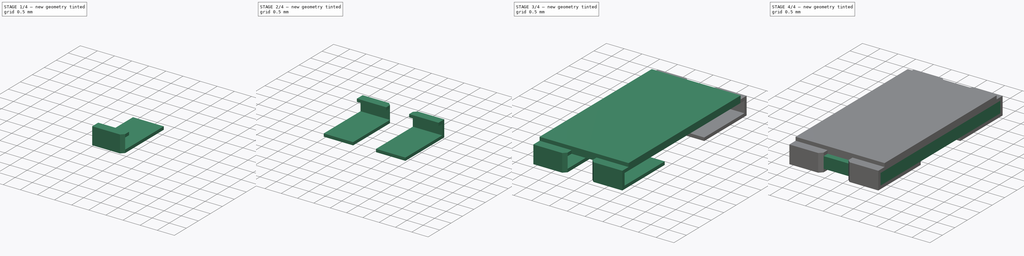
[diagram: build sequence overview — one tinted view per stage of 4, left to right]
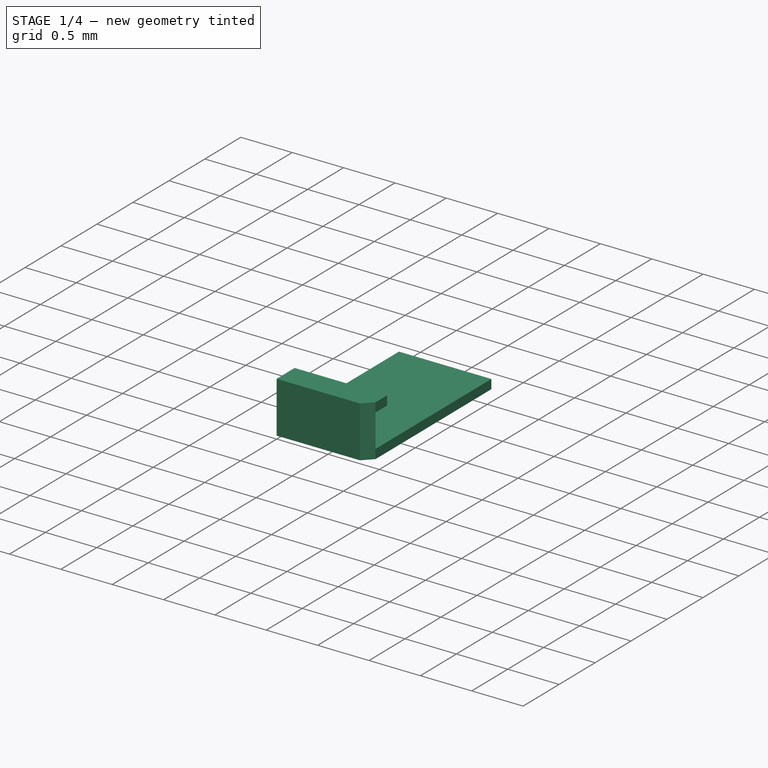
[diagram: stage 1 of 4 — iso view after this stage's code; geometry added in this stage tinted green]
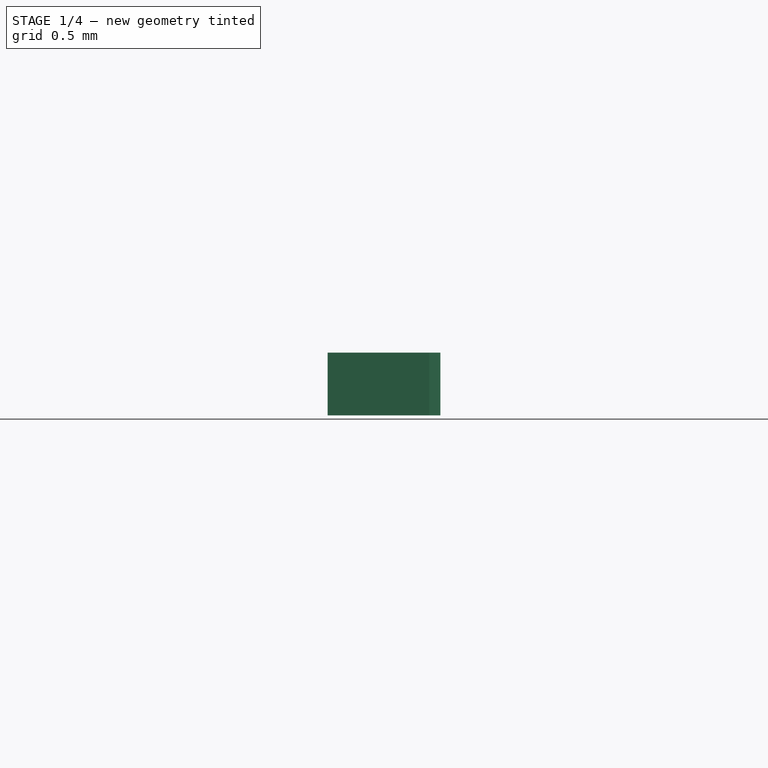
[diagram: stage 1 of 4 — front view after this stage's code; geometry added in this stage tinted green]
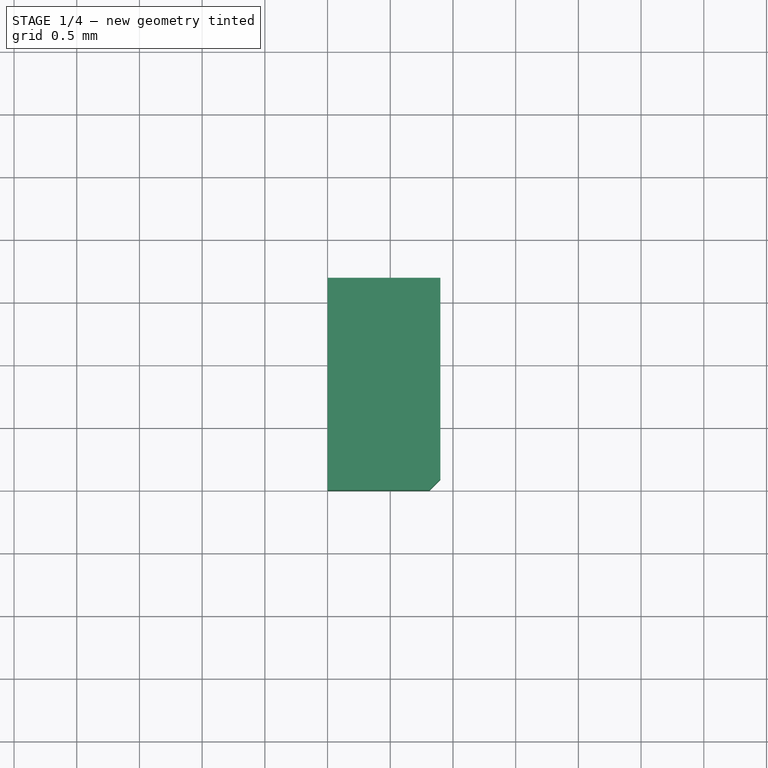
[diagram: stage 1 of 4 — top view after this stage's code; geometry added in this stage tinted green]
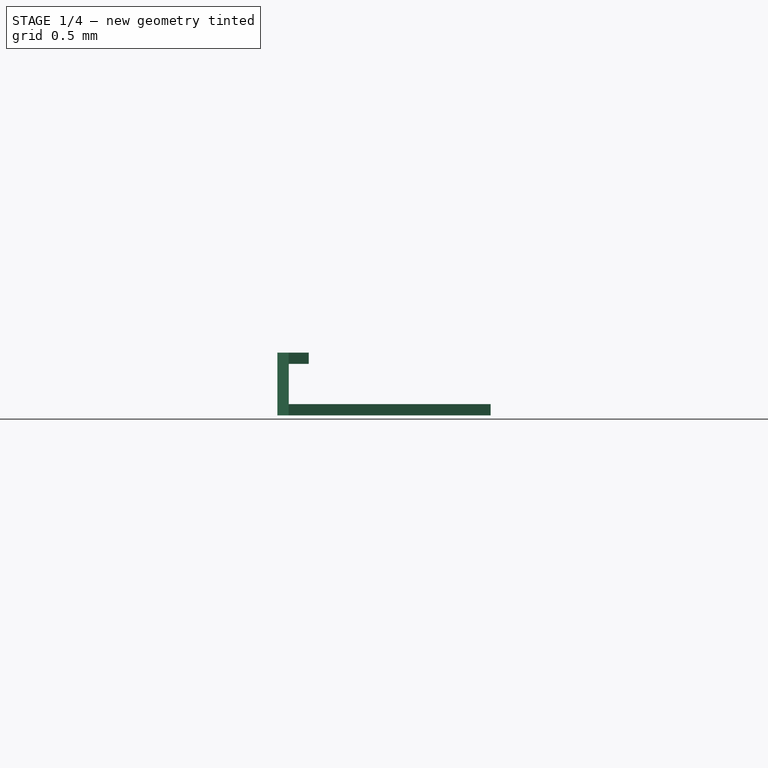
[diagram: stage 1 of 4 — right view after this stage's code; geometry added in this stage tinted green]
FCSTD DOCUMENT  (FreeCAD 0.17R13528 (Git))
Label: R_Shunt_Ohmite_LVK20
License: All rights reserved
LicenseURL: http://en.wikipedia.org/wiki/All_rights_reserved
objects: Part::Fuse×4, Sketcher::SketchObject×3, PartDesign::Pad×3, PartDesign::Body×3, Part::Mirroring×2, PartDesign::Chamfer×1
note: 19 computed .brp shape members not serialized (recipe doc carries the construction recipe); baked Part::Feature solids carry a one-line shape summary decoded from their .brp

FEATURE [PartDesign::Body] Body001
  Group = -> [Sketch001,Pad001]
  Origin = -> Origin001
  Tip = -> Pad001
FEATURE [Sketcher::SketchObject] Sketch002
  MapMode = 5
  Placement = pos=(0,0,0) rot=(0.57735,0.57735,0.57735;2.0944rad)
  Support = -> [YZ_Plane002]
  sketch-geometry (8):
    g0: LineSegment StartX=-2.25 StartY=0.41 StartZ=0 EndX=-2.41 EndY=0.41 EndZ=0
    g1: LineSegment StartX=-2.41 StartY=0.41 StartZ=0 EndX=-2.41 EndY=0.09 EndZ=0
    g2: LineSegment StartX=-2.41 StartY=0.09 StartZ=0 EndX=-0.8 EndY=0.09 EndZ=0
    g3: LineSegment StartX=-0.8 StartY=0.09 StartZ=0 EndX=-0.8 EndY=0 EndZ=0
    g4: LineSegment StartX=-0.8 StartY=0 StartZ=0 EndX=-2.5 EndY=0 EndZ=0
    g5: LineSegment StartX=-2.5 StartY=0 StartZ=0 EndX=-2.5 EndY=0.5 EndZ=0
    g6: LineSegment StartX=-2.5 StartY=0.5 StartZ=0 EndX=-2.25 EndY=0.5 EndZ=0
    g7: LineSegment StartX=-2.25 StartY=0.5 StartZ=0 EndX=-2.25 EndY=0.41 EndZ=0
  constraints (24):
    c: Horizontal(g0)
    c: Coincident(g0,g1)
    c: Vertical(g1)
    c: Coincident(g1,g2)
    c: Horizontal(g2)
    c: Coincident(g2,g3)
    c: Vertical(g3)
    c: Coincident(g3,g4)
    c: PointOnObject(g4,g-1)
    c: Horizontal(g4)
    c: Coincident(g4,g5)
    c: Vertical(g5)
    c: Coincident(g5,g6)
    c: Horizontal(g6)
    c: Coincident(g6,g7)
    c: Coincident(g7,g0)
    c: Vertical(g7)
    c: DistanceY(g7,g7) = 0.09
    c: DistanceY(g3,g3) = 0.09
    c: DistanceY(g-1,g0) = 0.41
    c: DistanceX(g5,g0) = 0.09
    c: DistanceX(g4,g4) = 1.7
    c: DistanceX(g1,g-1) = 2.41
    c: DistanceX(g0,g-1) = 2.25
FEATURE [PartDesign::Pad] Pad002
  Length = 0.9
  Length2 = 100
  Placement = pos=(0,0,0) rot=(0.57735,0.57735,0.57735;2.0944rad)
  Profile = -> Sketch002
  Type = 0
FEATURE [PartDesign::Chamfer] Chamfer
  Base = -> Pad002 [Edge19]
  BaseFeature = -> Pad002
  Placement = pos=(0,0,0) rot=(0.57735,0.57735,0.57735;2.0944rad)
  Size = 0.089
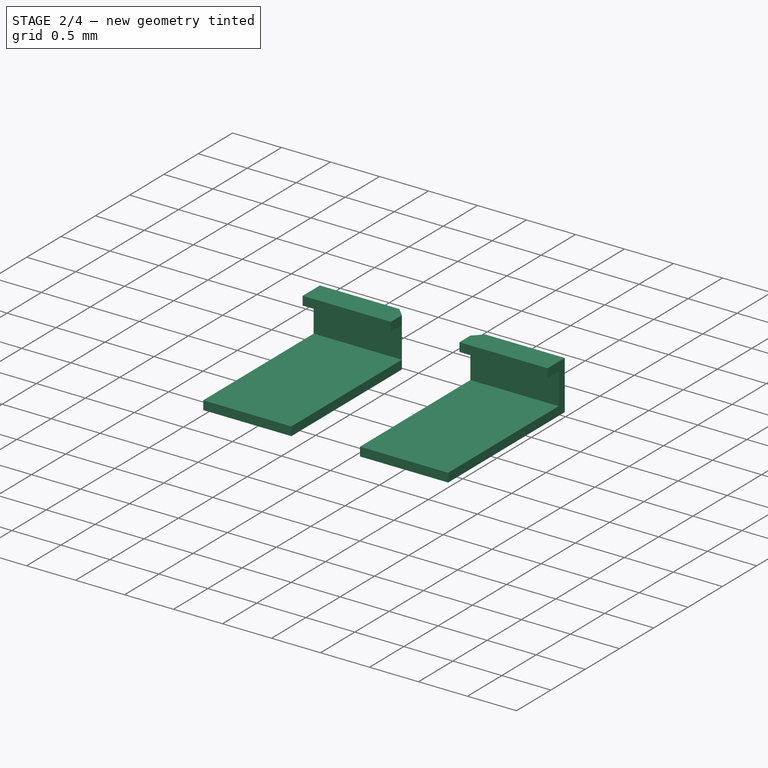
[diagram: stage 2 of 4 — iso view after this stage's code; geometry added in this stage tinted green]
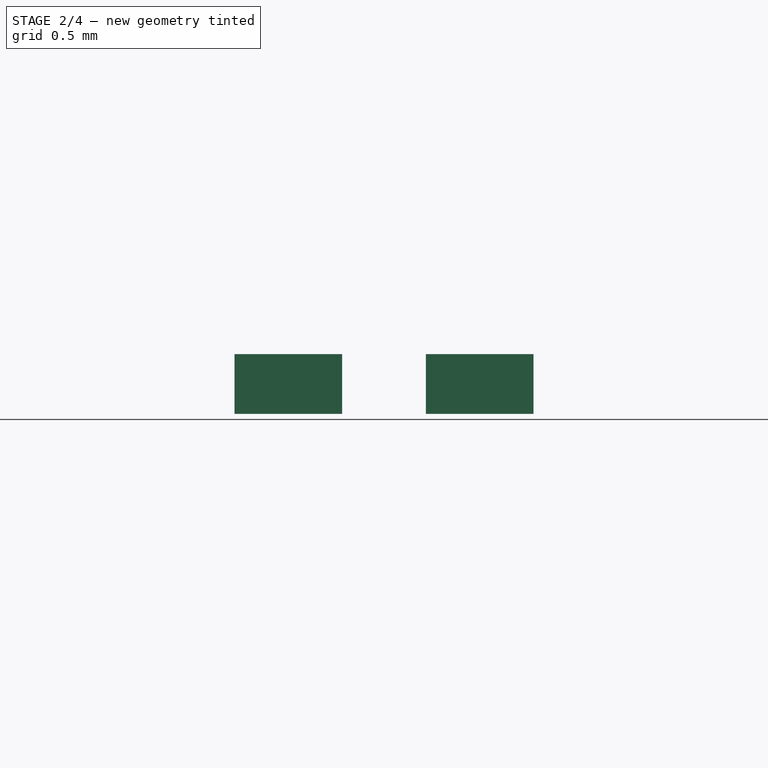
[diagram: stage 2 of 4 — front view after this stage's code; geometry added in this stage tinted green]
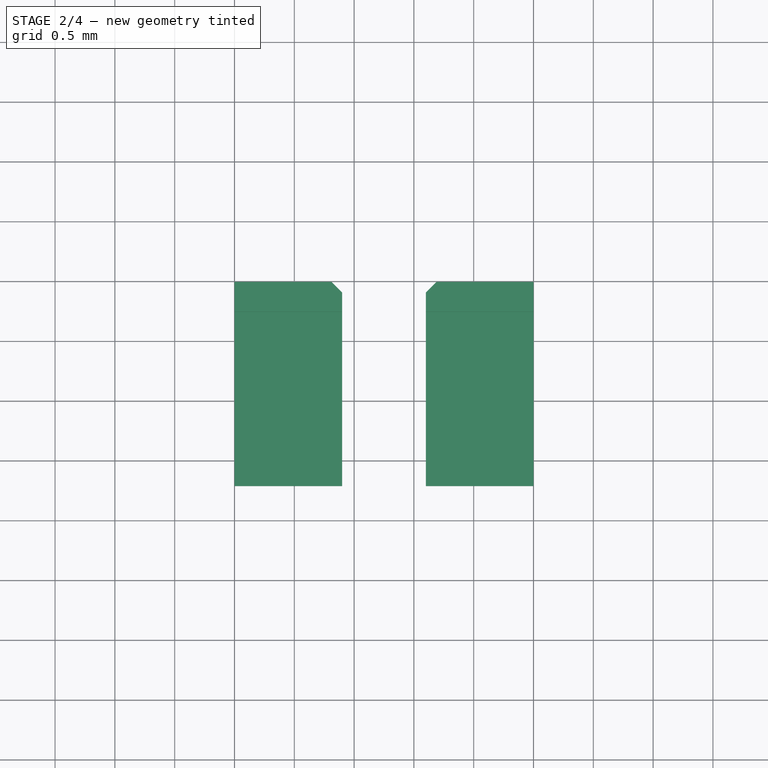
[diagram: stage 2 of 4 — top view after this stage's code; geometry added in this stage tinted green]
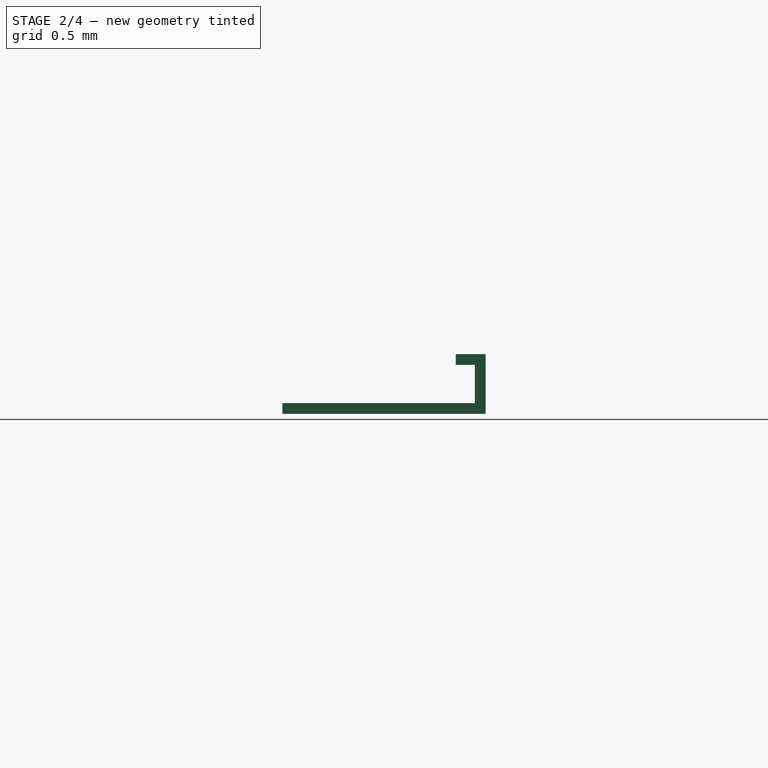
[diagram: stage 2 of 4 — right view after this stage's code; geometry added in this stage tinted green]
FEATURE [PartDesign::Body] Body002
  Group = -> [Sketch002,Pad002,Chamfer]
  Origin = -> Origin002
  Tip = -> Chamfer
FEATURE [Part::Mirroring] mirror  label="Mirror of Body002"
  Base = (1.25,-2.25,0.6)
  Normal = (0.999669,0,0)
  Source = -> Body002
FEATURE [Part::Fuse] Fusion
  Base = -> Body002
  Tool = -> mirror
FEATURE [Part::Mirroring] mirror001  label="Mirror of Fusion"
  Base = (0.0186541,-0.00560868,0.6)
  Normal = (0,1,0)
  Source = -> Fusion
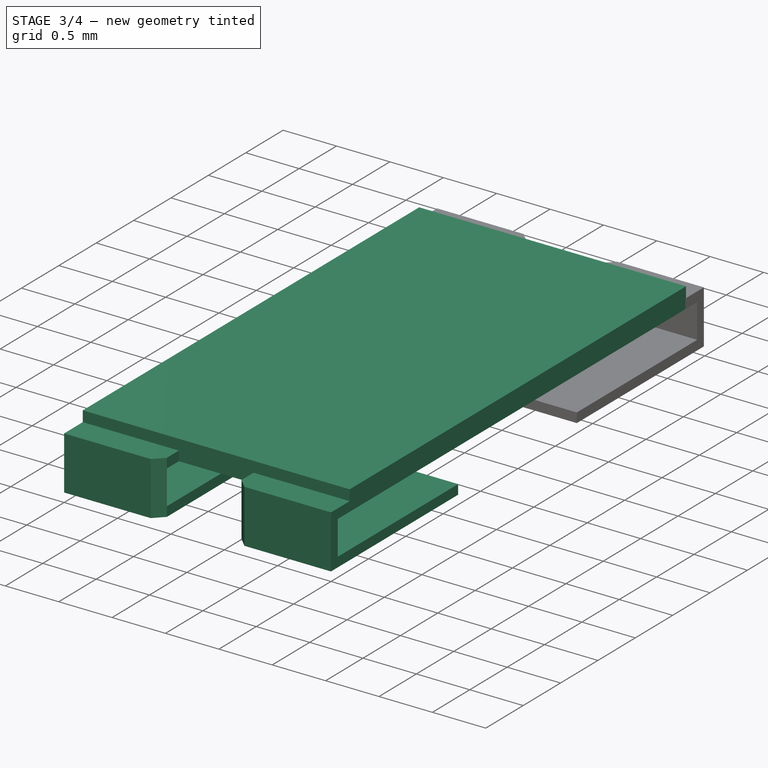
[diagram: stage 3 of 4 — iso view after this stage's code; geometry added in this stage tinted green]
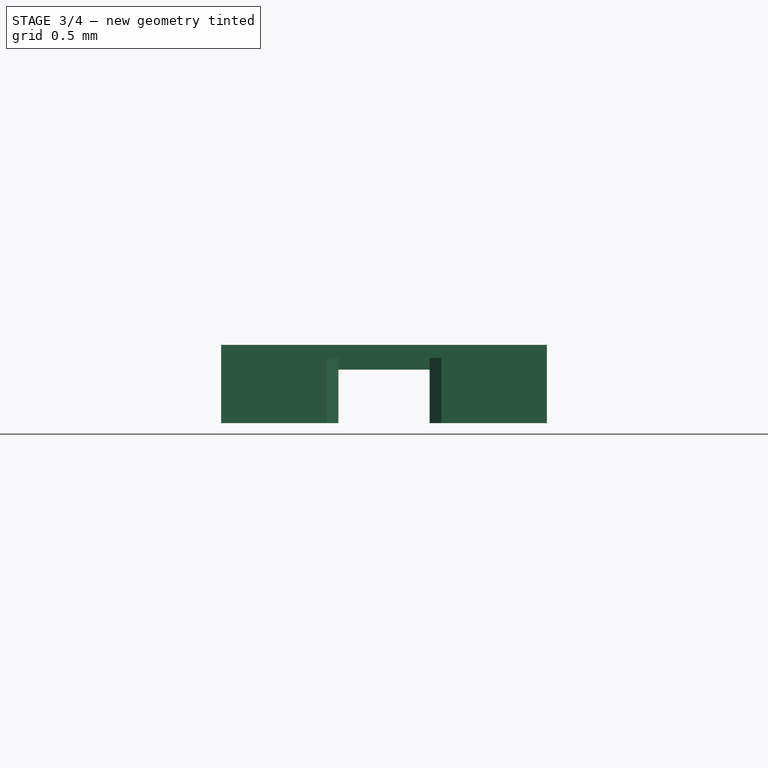
[diagram: stage 3 of 4 — front view after this stage's code; geometry added in this stage tinted green]
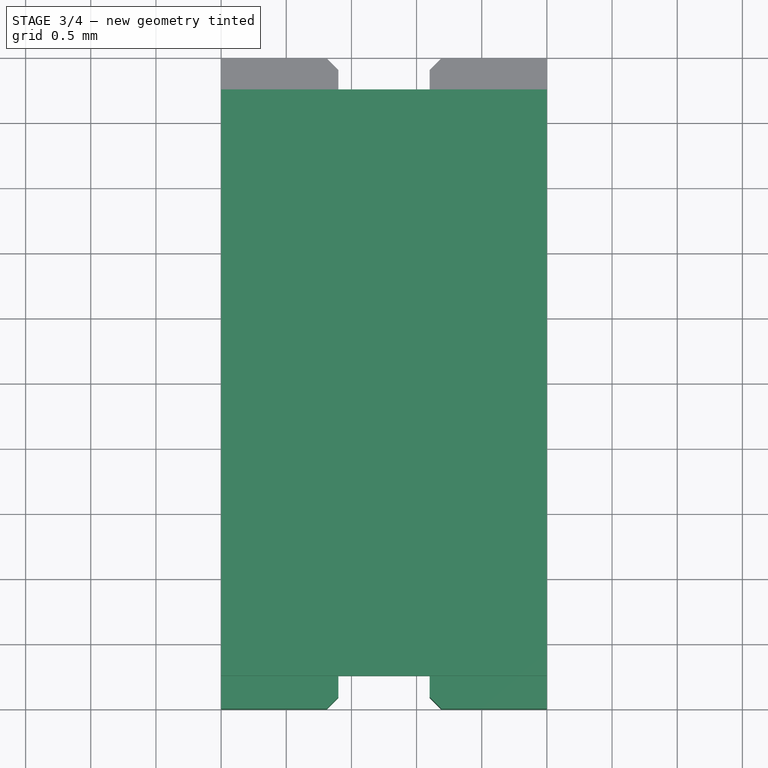
[diagram: stage 3 of 4 — top view after this stage's code; geometry added in this stage tinted green]
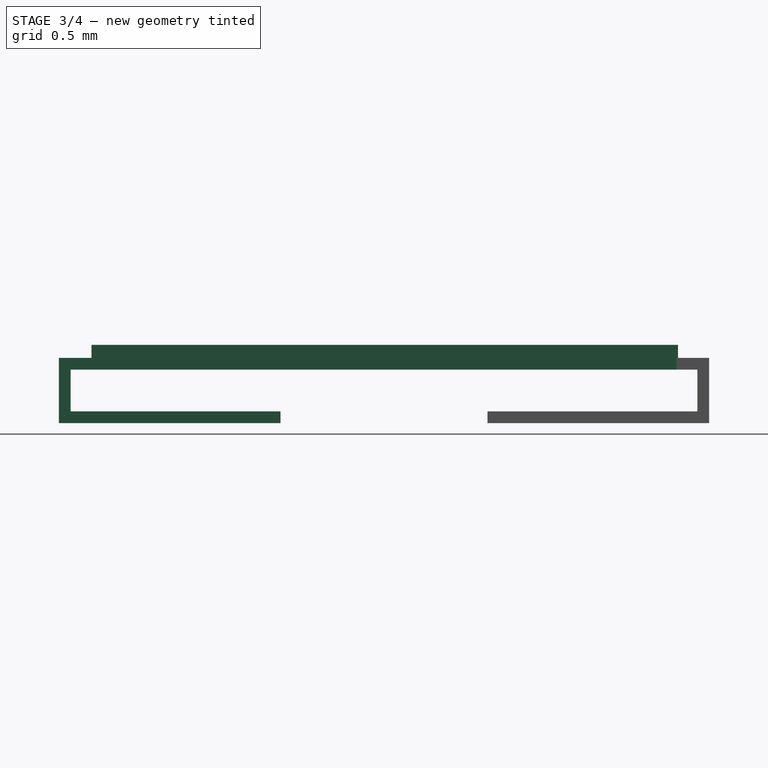
[diagram: stage 3 of 4 — right view after this stage's code; geometry added in this stage tinted green]
FEATURE [PartDesign::Body] Body
  Group = -> [Sketch,Pad]
  Origin = -> Origin
  Tip = -> Pad
FEATURE [Sketcher::SketchObject] Sketch001
  MapMode = 5
  Placement = pos=(0,0,0) rot=(0.57735,0.57735,0.57735;2.0944rad)
  Support = -> [YZ_Plane001]
  sketch-geometry (4):
    g0: LineSegment StartX=-2.25 StartY=0.41 StartZ=0 EndX=2.25 EndY=0.41 EndZ=0
    g1: LineSegment StartX=2.25 StartY=0.41 StartZ=0 EndX=2.25 EndY=0.6 EndZ=0
    g2: LineSegment StartX=2.25 StartY=0.6 StartZ=0 EndX=-2.25 EndY=0.6 EndZ=0
    g3: LineSegment StartX=-2.25 StartY=0.6 StartZ=0 EndX=-2.25 EndY=0.41 EndZ=0
  constraints (12):
    c: Coincident(g0,g1)
    c: Coincident(g1,g2)
    c: Coincident(g2,g3)
    c: Coincident(g3,g0)
    c: Horizontal(g0)
    c: Horizontal(g2)
    c: Vertical(g1)
    c: Vertical(g3)
    c: DistanceY(g1,g1) = 0.19
    c: DistanceY(g-1,g0) = 0.41
    c: DistanceX(g2,g2) = 4.5
    c: DistanceX(g0,g-1) = 2.25
FEATURE [PartDesign::Pad] Pad001
  Length = 2.5
  Length2 = 100
  Placement = pos=(0,0,0) rot=(0.57735,0.57735,0.57735;2.0944rad)
  Profile = -> Sketch001
  Type = 0
FEATURE [Part::Fuse] Fusion001
  Base = -> Fusion
  Tool = -> mirror001
FEATURE [Part::Fuse] Fusion002
  Base = -> Body001
  Tool = -> Fusion001
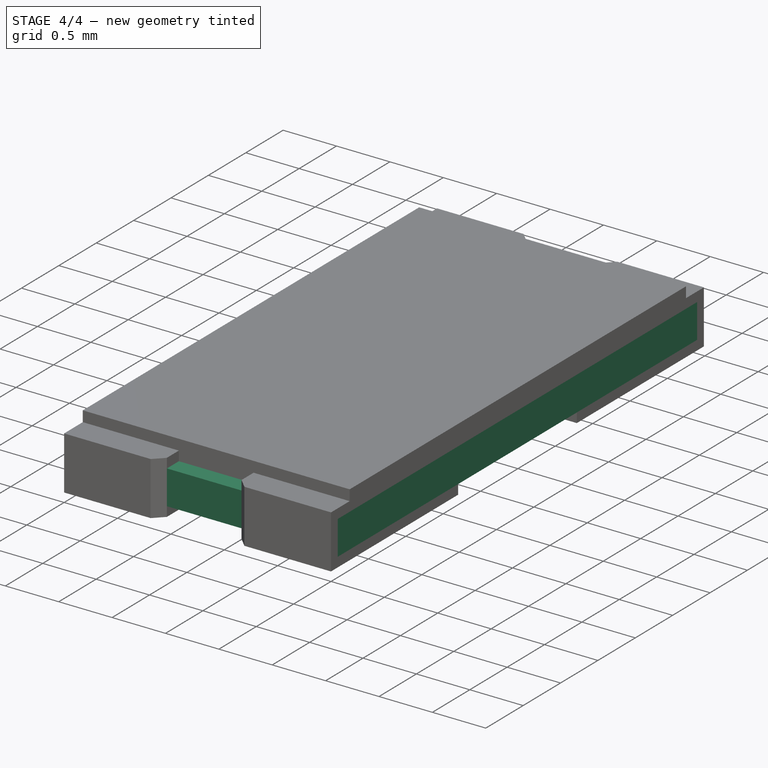
[diagram: stage 4 of 4 — iso view after this stage's code; geometry added in this stage tinted green]
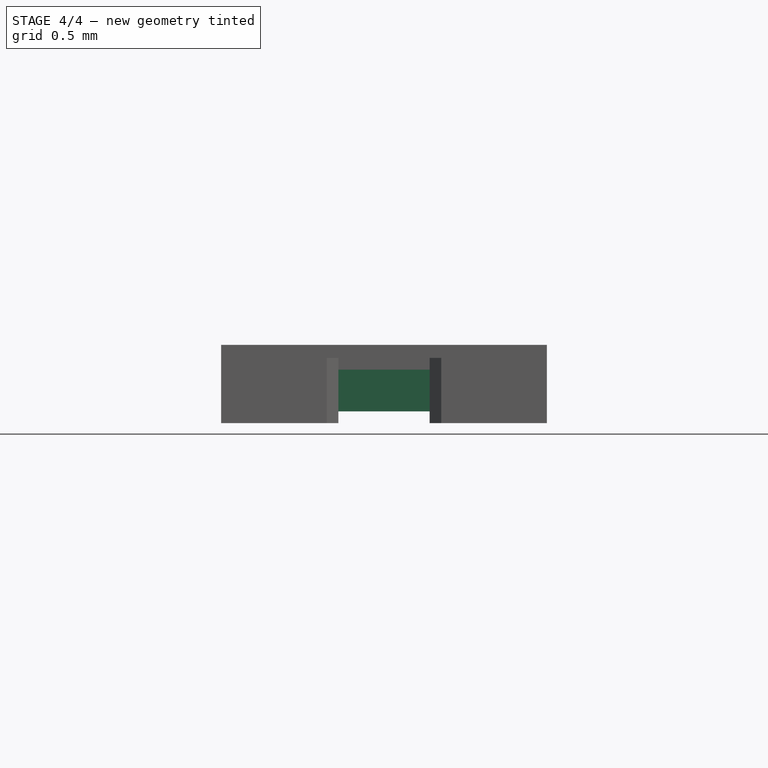
[diagram: stage 4 of 4 — front view after this stage's code; geometry added in this stage tinted green]
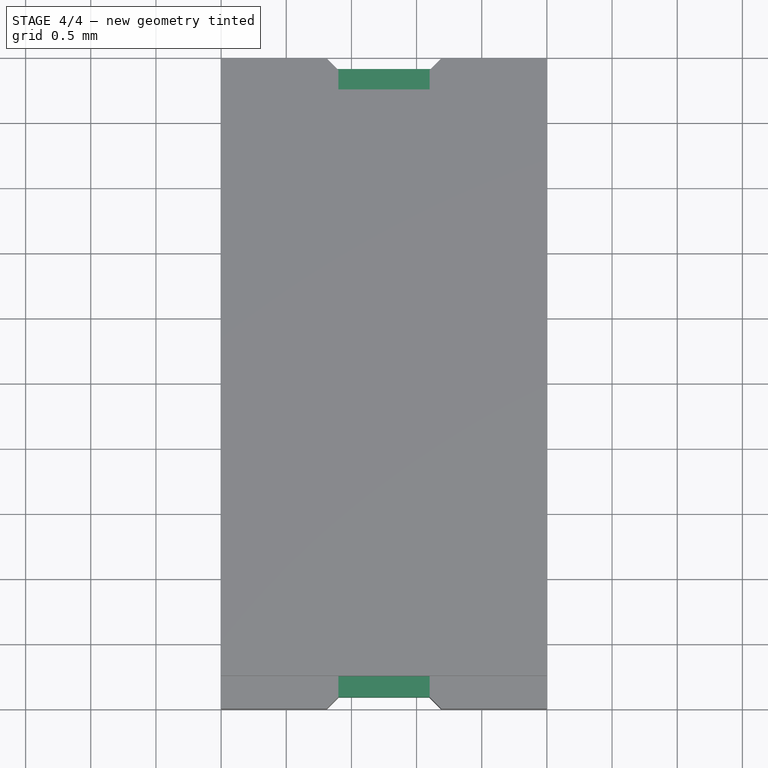
[diagram: stage 4 of 4 — top view after this stage's code; geometry added in this stage tinted green]
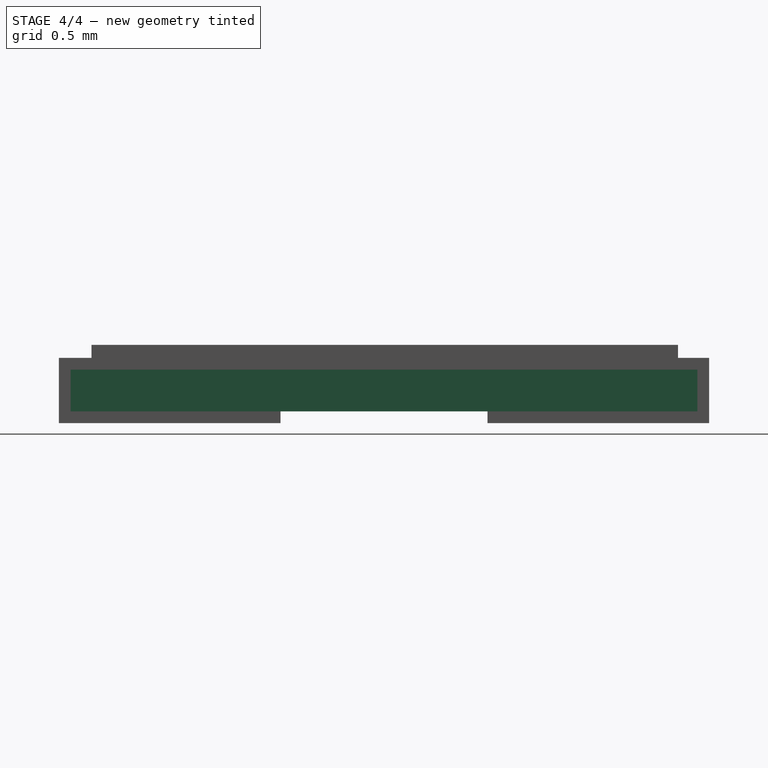
[diagram: stage 4 of 4 — right view after this stage's code; geometry added in this stage tinted green]
FEATURE [Sketcher::SketchObject] Sketch
  MapMode = 5
  Placement = pos=(0,0,0) rot=(0.57735,0.57735,0.57735;2.0944rad)
  Support = -> [YZ_Plane]
  sketch-geometry (4):
    g0: LineSegment StartX=-2.41 StartY=0.41 StartZ=0 EndX=2.41 EndY=0.41 EndZ=0
    g1: LineSegment StartX=2.41 StartY=0.41 StartZ=0 EndX=2.41 EndY=0.09 EndZ=0
    g2: LineSegment StartX=2.41 StartY=0.09 StartZ=0 EndX=-2.41 EndY=0.09 EndZ=0
    g3: LineSegment StartX=-2.41 StartY=0.09 StartZ=0 EndX=-2.41 EndY=0.41 EndZ=0
  constraints (12):
    c: Coincident(g0,g1)
    c: Coincident(g1,g2)
    c: Coincident(g2,g3)
    c: Coincident(g3,g0)
    c: Horizontal(g0)
    c: Horizontal(g2)
    c: Vertical(g1)
    c: Vertical(g3)
    c: DistanceY(g1,g1) = 0.32
    c: DistanceX(g0,g0) = 4.82
    c: DistanceY(g-1,g1) = 0.09
    c: DistanceX(g-1,g0) = 2.41
FEATURE [PartDesign::Pad] Pad
  Length = 2.5
  Length2 = 100
  Placement = pos=(0,0,0) rot=(0.57735,0.57735,0.57735;2.0944rad)
  Profile = -> Sketch
  Type = 0
FEATURE [Part::Fuse] Fusion003  label="LVK20"
  Base = -> Body
  Tool = -> Fusion002
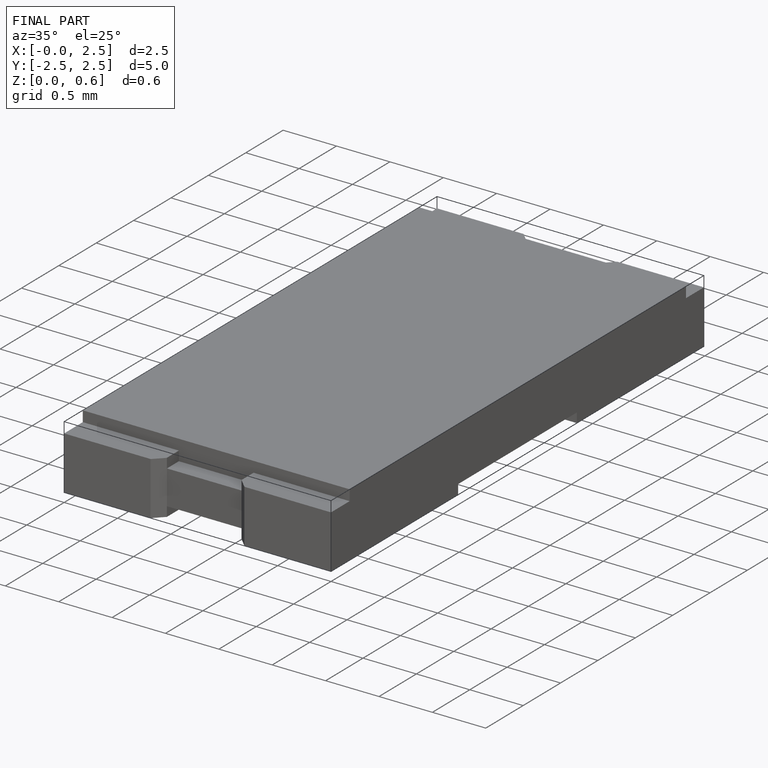
[diagram: finished part — iso view with bounding-box wireframe]
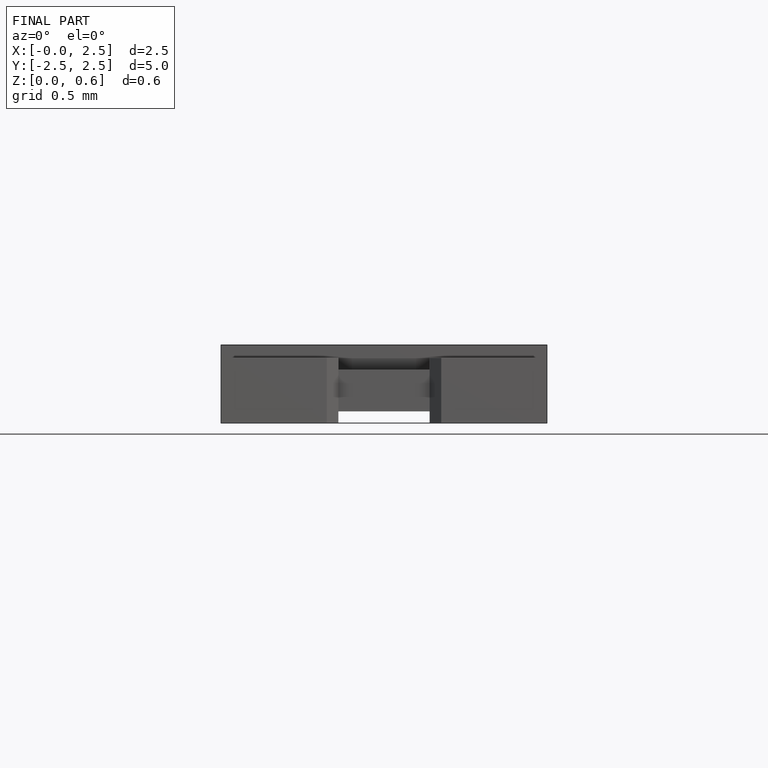
[diagram: finished part — front view with bounding-box wireframe]
